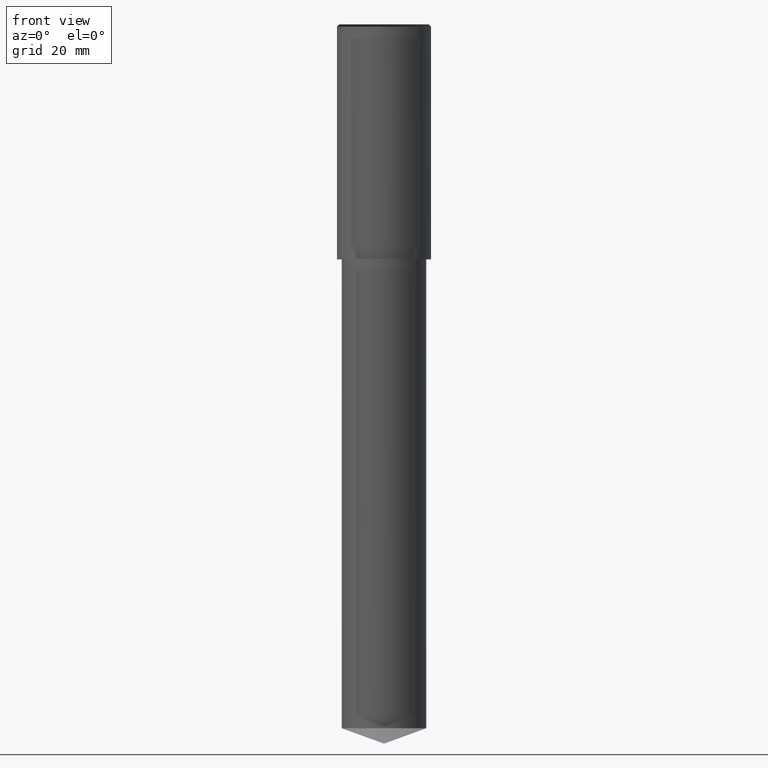
[diagram: clean part render]
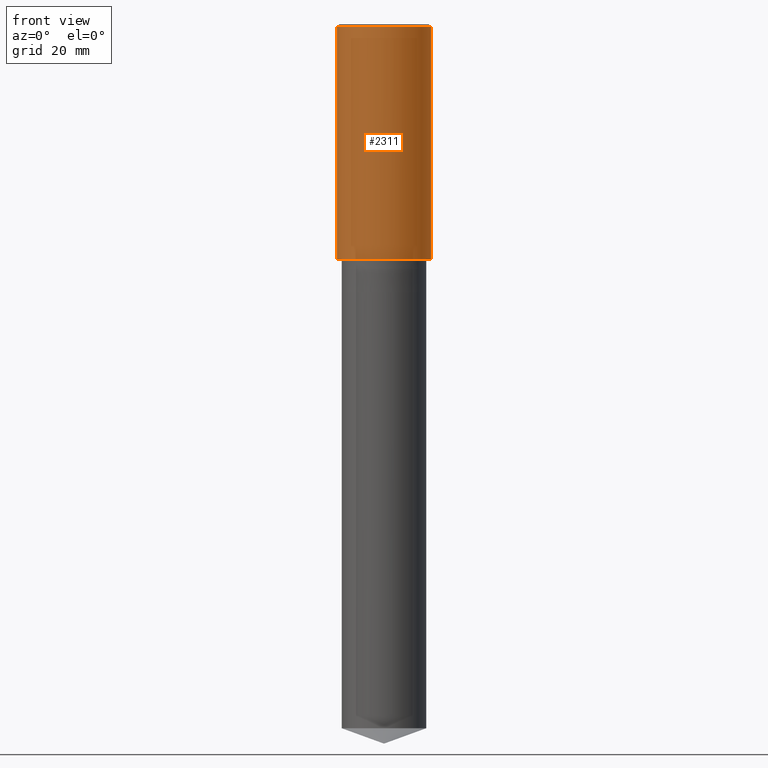
[diagram: same view with one face highlighted and labeled with its STEP entity id]
A machine part, front view. The second image highlights one B-rep face of the part: STEP entity #2311.
In plain terms, the highlighted face is a freeform B-spline surface patch.
Its self-contained STEP definition (entity closure, byte-faithful):
#1940=CARTESIAN_POINT('',(10.0,0.0,0.0));
#1944=CARTESIAN_POINT('',(-10.0,0.0,0.0));
#1945=CARTESIAN_POINT('',(10.0,0.0,49.5));
#1949=CARTESIAN_POINT('',(-10.0,0.0,49.5));
#1962=CARTESIAN_POINT('',(-10.0,-10.0,0.0));
#1963=CARTESIAN_POINT('',(0.0,-10.0,0.0));
#1964=CARTESIAN_POINT('',(10.0,-10.0,0.0));
#1965=CARTESIAN_POINT('',(-10.0,-10.0,49.5));
#1966=CARTESIAN_POINT('',(0.0,-10.0,49.5));
#1967=CARTESIAN_POINT('',(10.0,-10.0,49.5));
#2292=(
BOUNDED_SURFACE()
B_SPLINE_SURFACE(1,2,(
(#1944,#1962,#1963,#1964,#1940),
(#1949,#1965,#1966,#1967,#1945)
), .UNSPECIFIED.,.F.,.F.,.F.)
B_SPLINE_SURFACE_WITH_KNOTS((2,2),(3,2,3),(
0.0,1.0),(
0.0,0.5,1.0), .UNSPECIFIED.)
GEOMETRIC_REPRESENTATION_ITEM()
RATIONAL_B_SPLINE_SURFACE(((1.0,0.707106781187,1.0,0.707106781187,1.0),
(1.0,0.707106781187,1.0,0.707106781187,1.0)
))
REPRESENTATION_ITEM('')
SURFACE()
);
#2293=(
BOUNDED_CURVE()
B_SPLINE_CURVE(2,(#1940,#1964,#1963,#1962,#1944),.UNSPECIFIED.,.F.,.F.)
B_SPLINE_CURVE_WITH_KNOTS((3,2,3),
(0.0,0.5,1.0),.UNSPECIFIED.)
CURVE()
GEOMETRIC_REPRESENTATION_ITEM()
RATIONAL_B_SPLINE_CURVE((1.0,0.707106781187,1.0,0.707106781187,1.0))
REPRESENTATION_ITEM('')
);
#2294=(
BOUNDED_CURVE()
B_SPLINE_CURVE(1,(#1944,#1949),.UNSPECIFIED.,.F.,.F.)
B_SPLINE_CURVE_WITH_KNOTS((2,2),
(0.0,1.0),.UNSPECIFIED.)
CURVE()
GEOMETRIC_REPRESENTATION_ITEM()
RATIONAL_B_SPLINE_CURVE((1.0,1.0))
REPRESENTATION_ITEM('')
);
#2295=(
BOUNDED_CURVE()
B_SPLINE_CURVE(2,(#1949,#1965,#1966,#1967,#1945),.UNSPECIFIED.,.F.,.F.)
B_SPLINE_CURVE_WITH_KNOTS((3,2,3),
(0.0,0.5,1.0),.UNSPECIFIED.)
CURVE()
GEOMETRIC_REPRESENTATION_ITEM()
RATIONAL_B_SPLINE_CURVE((1.0,0.707106781187,1.0,0.707106781187,1.0))
REPRESENTATION_ITEM('')
);
#2296=(
BOUNDED_CURVE()
B_SPLINE_CURVE(1,(#1945,#1940),.UNSPECIFIED.,.F.,.F.)
B_SPLINE_CURVE_WITH_KNOTS((2,2),
(0.0,1.0),.UNSPECIFIED.)
CURVE()
GEOMETRIC_REPRESENTATION_ITEM()
RATIONAL_B_SPLINE_CURVE((1.0,1.0))
REPRESENTATION_ITEM('')
);
#2297=VERTEX_POINT('',#1940);
#2298=VERTEX_POINT('',#1944);
#2299=VERTEX_POINT('',#1945);
#2300=VERTEX_POINT('',#1949);
#2301=EDGE_CURVE('',#2297,#2298,#2293,.T.);
#2302=EDGE_CURVE('',#2298,#2300,#2294,.T.);
#2303=EDGE_CURVE('',#2300,#2299,#2295,.T.);
#2304=EDGE_CURVE('',#2299,#2297,#2296,.T.);
#2305=ORIENTED_EDGE('',*,*,#2301,.T.);
#2306=ORIENTED_EDGE('',*,*,#2302,.T.);
#2307=ORIENTED_EDGE('',*,*,#2303,.T.);
#2308=ORIENTED_EDGE('',*,*,#2304,.T.);
#2309=EDGE_LOOP('',(#2305,#2306,#2307,#2308));
#2310=FACE_OUTER_BOUND('',#2309,.T.);
#2311=ADVANCED_FACE('',(#2310),#2292,.T.);